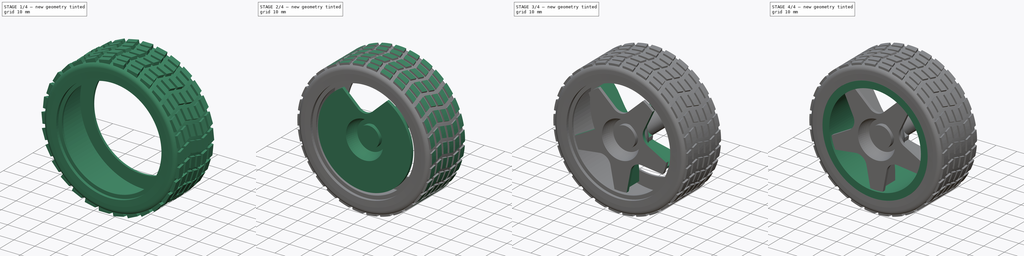
[diagram: build sequence overview — one tinted view per stage of 4, left to right]
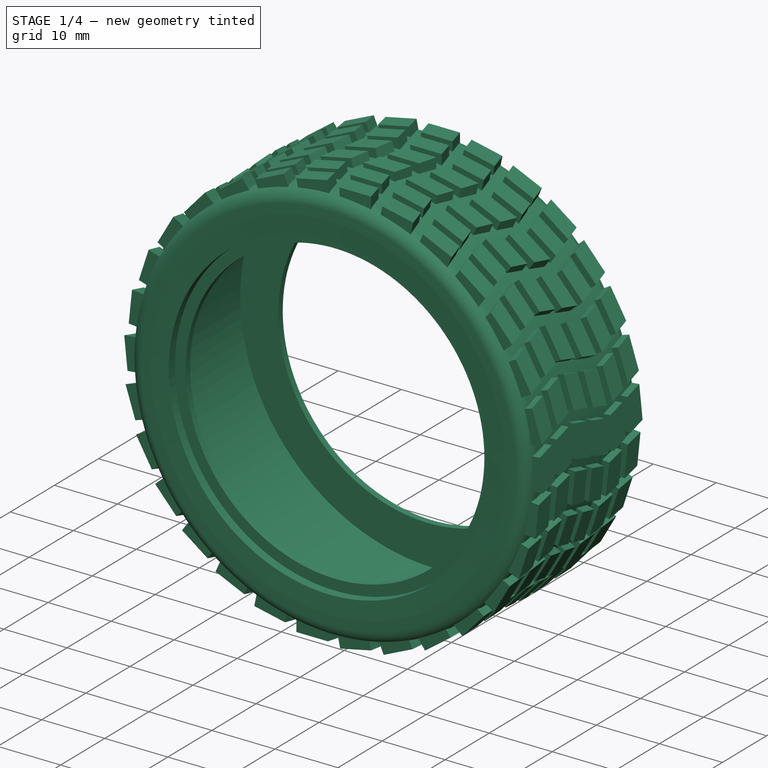
[diagram: stage 1 of 4 — iso view after this stage's code; geometry added in this stage tinted green]
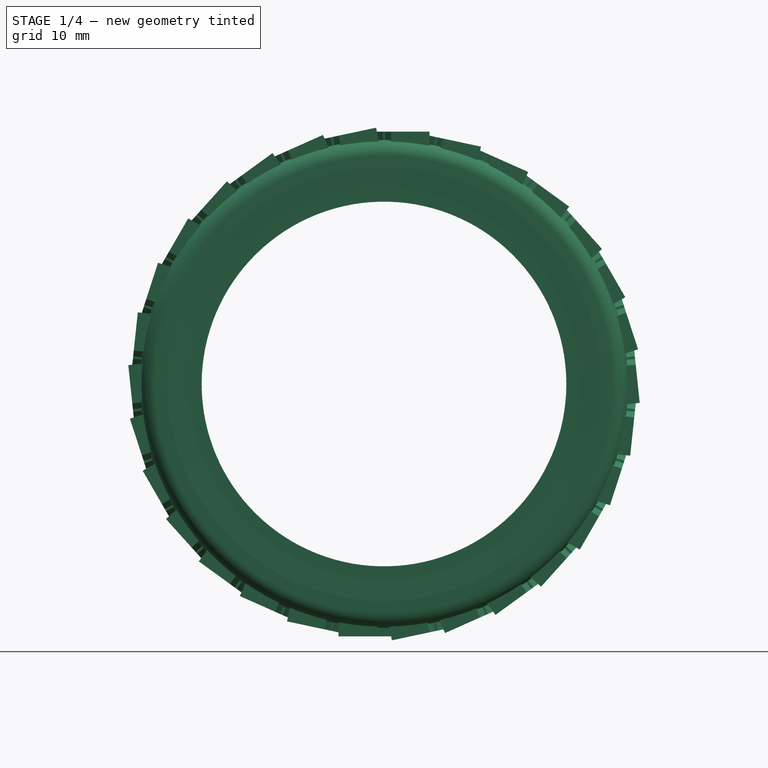
[diagram: stage 1 of 4 — front view after this stage's code; geometry added in this stage tinted green]
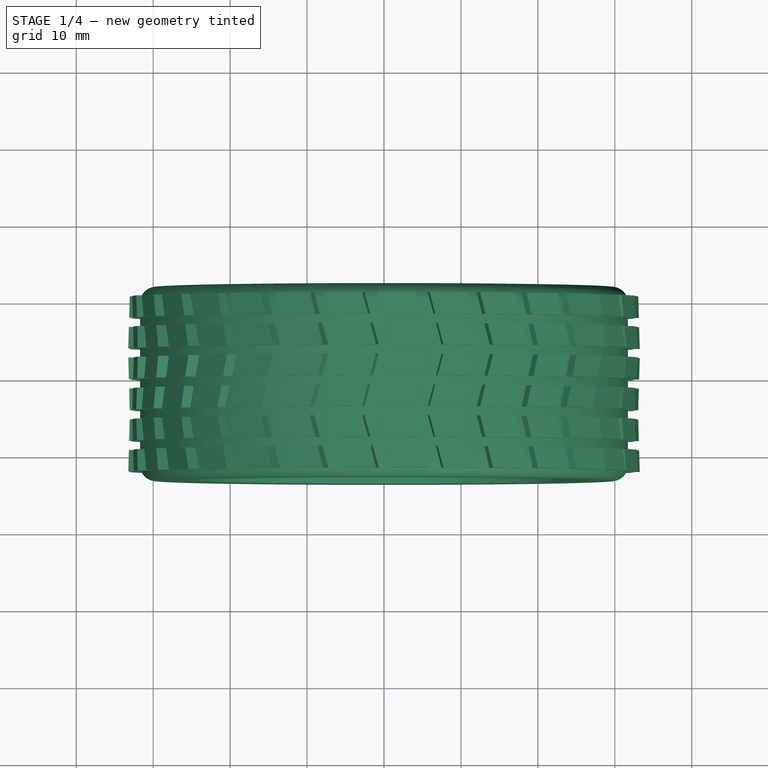
[diagram: stage 1 of 4 — top view after this stage's code; geometry added in this stage tinted green]
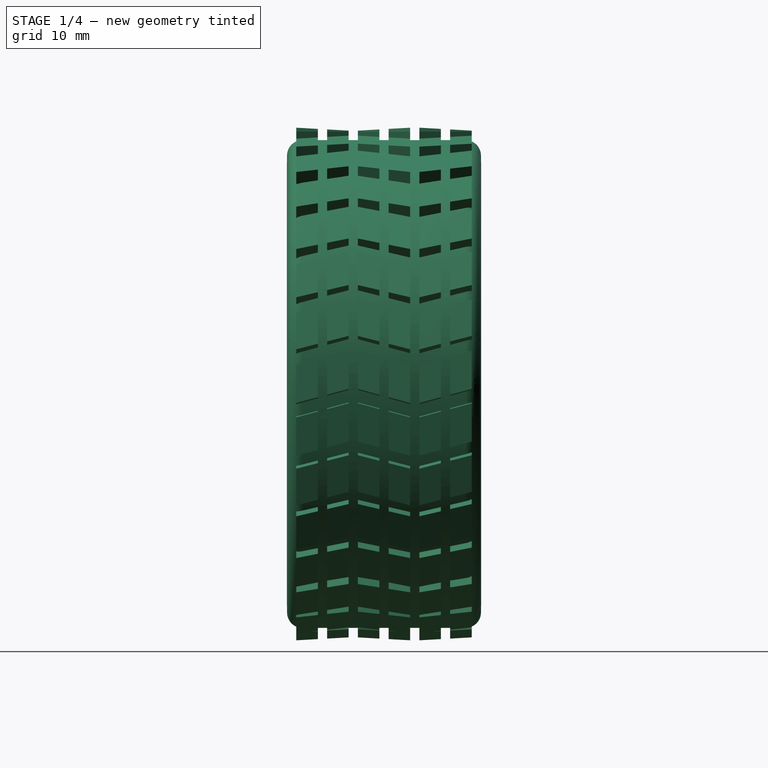
[diagram: stage 1 of 4 — right view after this stage's code; geometry added in this stage tinted green]
FCSTD DOCUMENT  (FreeCAD 0.21R29865 (Git))
Label: Yellow_wheel_65mm
License: Creative Commons Attribution-NonCommercial-ShareAlike
LicenseURL: http://creativecommons.org/licenses/by-nc-sa/4.0/
objects: Sketcher::SketchObject×10, PartDesign::Revolution×3, PartDesign::Pocket×3, PartDesign::Pad×3, PartDesign::PolarPattern×3, PartDesign::Body×2, PartDesign::Plane×1, PartDesign::Fillet×1, PartDesign::Groove×1, App::Part×1
note: 38 computed .brp shape members not serialized (recipe doc carries the construction recipe); baked Part::Feature solids carry a one-line shape summary decoded from their .brp

FEATURE [PartDesign::Body] Body  label="Wheel"
  Group = -> [Sketch,Revolution,Sketch001,Pocket,Sketch002,Pocket001,DatumPlane,Sketch003,Pad,PolarPattern,Sketch004,Revolution001,Sketch005,Pocket002,Sketch006,Pad001,PolarPattern001]
  Origin = -> Origin001
  Tip = -> PolarPattern001
FEATURE [Sketcher::SketchObject] Sketch007
  FullyConstrained = true
  MapMode = 5
  Support = -> [XY_Plane002]
  sketch-geometry (32):
    g0: LineSegment StartX=26.4 StartY=8.9 StartZ=0 EndX=23.7 EndY=8.9 EndZ=0
    g1: LineSegment StartX=23.7 StartY=8.9 StartZ=0 EndX=23.7 EndY=9.9 EndZ=0
    g2: LineSegment StartX=23.7 StartY=9.9 StartZ=0 EndX=25.4 EndY=9.9 EndZ=0
    g3: LineSegment StartX=25.4 StartY=9.9 StartZ=0 EndX=25.4 EndY=11.5 EndZ=0
    g4: Circle CenterX=25.4 CenterY=11.5 CenterZ=0 NormalX=0 NormalY=0 NormalZ=1 AngleXU=0 Radius=1
    g5: Circle CenterX=28.15 CenterY=11.75 CenterZ=0 NormalX=0 NormalY=0 NormalZ=1 AngleXU=0 Radius=1
    g6: Circle CenterX=31.7 CenterY=11.5 CenterZ=0 NormalX=0 NormalY=0 NormalZ=1 AngleXU=0 Radius=1
    g7: BSplineCurve PolesCount=3 KnotsCount=2 Degree=2 IsPeriodic=0
    g8: GeomPoint X=25.4 Y=11.5 Z=0
    g9: GeomPoint X=31.7 Y=11.5 Z=0
    g10: LineSegment StartX=31.7 StartY=11.5 StartZ=0 EndX=31.7 EndY=-13.5 EndZ=0
    g11: LineSegment StartX=26.4 StartY=8.9 StartZ=0 EndX=26.4 EndY=10.3 EndZ=0
    g12: LineSegment StartX=30.7 StartY=10.3 StartZ=0 EndX=26.4 EndY=10.3 EndZ=0
    g13: LineSegment StartX=25.4 StartY=9.9 StartZ=0 EndX=26.4 EndY=9.9 EndZ=0
    g14: LineSegment StartX=30.7 StartY=10.3 StartZ=0 EndX=30.7 EndY=-12.5 EndZ=0
    g15: LineSegment StartX=30.7 StartY=-12.5 StartZ=0 EndX=26.4 EndY=-12.5 EndZ=0
    g16: LineSegment StartX=26.4 StartY=-12.5 StartZ=0 EndX=26.4 EndY=-11.1 EndZ=0
    g17: LineSegment StartX=26.4 StartY=-11.1 StartZ=0 EndX=23.7 EndY=-11.1 EndZ=0
    g18: LineSegment StartX=23.7 StartY=-11.1 StartZ=0 EndX=23.7 EndY=-12.1 EndZ=0
    g19: LineSegment StartX=23.7 StartY=-12.1 StartZ=0 EndX=25.4 EndY=-12.1 EndZ=0
    g20: LineSegment StartX=25.4 StartY=-12.1 StartZ=0 EndX=25.4 EndY=-13.5 EndZ=0
    g21: Circle CenterX=25.4 CenterY=-13.5 CenterZ=0 NormalX=0 NormalY=0 NormalZ=1 AngleXU=0 Radius=1
    g22: Circle CenterX=28.15 CenterY=-13.75 CenterZ=0 NormalX=0 NormalY=0 NormalZ=1 AngleXU=0 Radius=1
    g23: Circle CenterX=31.7 CenterY=-13.5 CenterZ=0 NormalX=0 NormalY=0 NormalZ=1 AngleXU=0 Radius=1
    g24: BSplineCurve PolesCount=3 KnotsCount=2 Degree=2 IsPeriodic=0
    g25: GeomPoint X=25.4 Y=-13.5 Z=0
    g26: GeomPoint X=31.7 Y=-13.5 Z=0
    g27: GeomPoint X=30.7 Y=11.5 Z=0
    g28: LineSegment StartX=25.4 StartY=-12.1 StartZ=0 EndX=26.4 EndY=-12.1 EndZ=0
    g29: LineSegment StartX=26.4 StartY=-12.5 StartZ=0 EndX=26.4 EndY=-13.5 EndZ=0
    g30: LineSegment StartX=30.7 StartY=11.5 StartZ=0 EndX=30.7 EndY=10.3 EndZ=0
    g31: LineSegment StartX=30.7 StartY=10.3 StartZ=0 EndX=31.7 EndY=10.3 EndZ=0
  constraints (85):
    c: Coincident(g0,g1)
    c: Vertical(g1)
    c: Coincident(g1,g2)
    c: Coincident(g2,g3)
    c: Vertical(g3)
    c: Horizontal(g2)
    c: Horizontal(g0)
    c: Weight(g4) = 1
    c: Coincident(g7,g3)
    c: Equal(g4,g5)
    c: Equal(g4,g6)
    c: InternalAlignment(g4,g7)
    c: InternalAlignment(g5,g7)
    c: InternalAlignment(g6,g7)
    c: InternalAlignment(g8,g7)
    c: InternalAlignment(g9,g7)
    c: Coincident(g10,g7)
    c: Vertical(g10)
    c: DistanceX(g0) = 23.7
    c: DistanceY(g3) = 11.5
    c: DistanceY(g10,g10) = 25
    c: Coincident(g11,g0)
    c: Vertical(g11)
    c: Horizontal(g7,g3)
    c: Coincident(g12,g11)
    c: Horizontal(g12)
    c: Coincident(g13,g2)
    c: PointOnObject(g13,g11)
    c: Horizontal(g13)
    c: Equal(g13,g1)
    c: DistanceY(g1,g1) = 1
    c: Coincident(g12,g14)
    c: Vertical(g14)
    c: Coincident(g14,g15)
    c: Horizontal(g15)
    c: Coincident(g15,g16)
    c: Vertical(g16)
    c: Coincident(g16,g17)
    c: Horizontal(g17)
    c: Coincident(g17,g18)
    c: Coincident(g18,g19)
    c: Coincident(g19,g20)
    c: Vertical(g20)
    c: Weight(g21) = 1
    c: Coincident(g24,g20)
    c: Equal(g21,g22)
    c: Equal(g21,g23)
    c: Coincident(g24,g10)
    c: InternalAlignment(g21,g24)
    c: InternalAlignment(g22,g24)
    c: InternalAlignment(g23,g24)
    c: InternalAlignment(g25,g24)
    c: InternalAlignment(g26,g24)
    c: Vertical(g17,g0)
    c: Vertical(g18)
    c: Horizontal(g19)
    c: Equal(g0,g17)
    c: Equal(g19,g2)
    c: Equal(g11,g16)
    c: DistanceX(g7) = 31.7
    c: Horizontal(g7,g27)
    c: Coincident(g28,g19)
    c: PointOnObject(g28,g16)
    c: Horizontal(g28)
    c: Coincident(g29,g15)
    c: Vertical(g29)
    c: Horizontal(g29,g20)
    c: Equal(g29,g28)
    c: Equal(g28,g18)
    c: Horizontal(g10,g20)
    c: Coincident(g30,g27)
    c: Coincident(g30,g12)
    c: Vertical(g30)
    c: DistanceY(g20,g18) = 1.4
    c: DistanceY(g1,g3) = 1.6
    c: DistanceX(g3) = 25.4
    c: Coincident(g31,g12)
    c: PointOnObject(g31,g10)
    c: Horizontal(g31)
    c: Equal(g31,g13)
    c: Vertical(g5,g22)
    c: DistanceY(g22,g10) = 0.25
    c: DistanceY(g7,g5) = 0.25
    c: DistanceX(g5,g7) = 3.55
    c: DistanceX(g14) = 30.7
FEATURE [PartDesign::Revolution] Revolution002
  Angle = 360
  Axis = (0,1,0)
  Base = (0,0,0)
  Profile = -> Sketch007
  ReferenceAxis = -> Sketch007 [V_Axis]
  Reversed = true
FEATURE [PartDesign::Fillet] Fillet
  Base = -> Revolution002 [Edge10,Edge8]
  BaseFeature = -> Revolution002
  Radius = 2
  SupportTransform = false
  UseAllEdges = false
FEATURE [Sketcher::SketchObject] Sketch008
  AttachmentOffset = pos=(0,0,30.8) rot=(0,0,1;0rad)
  FullyConstrained = false
  MapMode = 5
  Placement = pos=(0,0,30.8) rot=(0,0,1;0rad)
  Support = -> [XY_Plane002]
  sketch-geometry (37):
    g0: LineSegment StartX=-0.916783 StartY=12.5778 StartZ=0 EndX=-0.916783 EndY=-16.3112 EndZ=0
    g1: LineSegment StartX=-0.161785 StartY=-16.3112 StartZ=0 EndX=-0.161785 EndY=12.5778 EndZ=0
    g2: LineSegment StartX=0.161785 StartY=12.5778 StartZ=0 EndX=0.161785 EndY=-16.3112 EndZ=0
    g3: LineSegment StartX=0.916783 StartY=12.5778 StartZ=0 EndX=0.916783 EndY=-16.3112 EndZ=0
    g4: LineSegment StartX=4.08322 StartY=12.5778 StartZ=0 EndX=4.08322 EndY=-16.3112 EndZ=0
    g5: LineSegment StartX=4.83821 StartY=12.5778 StartZ=0 EndX=4.83821 EndY=-16.3112 EndZ=0
    g6: LineSegment StartX=5.16179 StartY=12.5778 StartZ=0 EndX=5.16179 EndY=-16.3112 EndZ=0
    g7: LineSegment StartX=5.91678 StartY=12.5778 StartZ=0 EndX=5.91678 EndY=-16.3112 EndZ=0
    g8: LineSegment StartX=-0.916783 StartY=10.4 StartZ=0 EndX=-0.161785 EndY=7.6 EndZ=0
    g9: LineSegment StartX=-0.161785 StartY=7.6 StartZ=0 EndX=4.83821 EndY=7.6 EndZ=0
    g10: LineSegment StartX=4.83821 StartY=7.6 StartZ=0 EndX=4.08322 EndY=10.4 EndZ=0
    g11: LineSegment StartX=4.08322 StartY=10.4 StartZ=0 EndX=-0.916783 EndY=10.4 EndZ=0
    g12: LineSegment StartX=0.161785 StartY=6.4 StartZ=0 EndX=0.916783 EndY=3.6 EndZ=0
    g13: LineSegment StartX=0.916783 StartY=3.6 StartZ=0 EndX=5.91678 EndY=3.6 EndZ=0
    g14: LineSegment StartX=5.91678 StartY=3.6 StartZ=0 EndX=5.16179 EndY=6.4 EndZ=0
    g15: LineSegment StartX=5.16179 StartY=6.4 StartZ=0 EndX=0.161785 EndY=6.4 EndZ=0
    g16: LineSegment StartX=5.91678 StartY=2.4 StartZ=0 EndX=0.916783 EndY=2.4 EndZ=0
    g17: LineSegment StartX=0.916783 StartY=2.4 StartZ=0 EndX=0.161785 EndY=-0.4 EndZ=0
    g18: LineSegment StartX=0.161785 StartY=-0.4 StartZ=0 EndX=5.16179 EndY=-0.4 EndZ=0
    g19: LineSegment StartX=5.16179 StartY=-0.4 StartZ=0 EndX=5.91678 EndY=2.4 EndZ=0
    g20: LineSegment StartX=-0.161785 StartY=-1.6 StartZ=0 EndX=-0.916783 EndY=-4.4 EndZ=0
    g21: LineSegment StartX=-0.916783 StartY=-4.4 StartZ=0 EndX=4.08322 EndY=-4.4 EndZ=0
    g22: LineSegment StartX=4.08322 StartY=-4.4 StartZ=0 EndX=4.83821 EndY=-1.6 EndZ=0
    g23: LineSegment StartX=4.83821 StartY=-1.6 StartZ=0 EndX=-0.161785 EndY=-1.6 EndZ=0
    g24: LineSegment StartX=-0.916783 StartY=-5.6 StartZ=0 EndX=4.08322 EndY=-5.6 EndZ=0
    g25: LineSegment StartX=4.08322 StartY=-5.6 StartZ=0 EndX=4.83821 EndY=-8.4 EndZ=0
    g26: LineSegment StartX=4.83821 StartY=-8.4 StartZ=0 EndX=-0.161785 EndY=-8.4 EndZ=0
    g27: LineSegment StartX=-0.161785 StartY=-8.4 StartZ=0 EndX=-0.916783 EndY=-5.6 EndZ=0
    g28: LineSegment StartX=0.161785 StartY=-9.6 StartZ=0 EndX=0.916783 EndY=-12.4 EndZ=0
    g29: LineSegment StartX=0.916783 StartY=-12.4 StartZ=0 EndX=5.91678 EndY=-12.4 EndZ=0
    g30: LineSegment StartX=5.91678 StartY=-12.4 StartZ=0 EndX=5.16179 EndY=-9.6 EndZ=0
    g31: LineSegment StartX=5.16179 StartY=-9.6 StartZ=0 EndX=0.161785 EndY=-9.6 EndZ=0
    g32: LineSegment StartX=4.08322 StartY=10.4 StartZ=0 EndX=5.91678 EndY=3.6 EndZ=0
    g33: LineSegment StartX=5.91678 StartY=2.4 StartZ=0 EndX=4.08322 EndY=-4.4 EndZ=0
    g34: LineSegment StartX=4.08322 StartY=-5.6 StartZ=0 EndX=5.91678 EndY=-12.4 EndZ=0
    g35: LineSegment StartX=-4.17763 StartY=-1 StartZ=0 EndX=15.3907 EndY=-1 EndZ=0
    g36: GeomPoint X=0 Y=-1 Z=0
  constraints (111):
    c: Vertical(g0)
    c: Vertical(g1)
    c: Vertical(g2)
    c: Vertical(g3)
    c: Vertical(g4)
    c: Vertical(g5)
    c: Vertical(g6)
    c: Vertical(g7)
    c: PointOnObject(g8,g0)
    c: PointOnObject(g8,g1)
    c: Coincident(g8,g9)
    c: PointOnObject(g9,g5)
    c: Horizontal(g9)
    c: Coincident(g9,g10)
    c: PointOnObject(g10,g4)
    c: Coincident(g10,g11)
    c: Coincident(g11,g8)
    c: Horizontal(g11)
    c: PointOnObject(g12,g2)
    c: PointOnObject(g12,g3)
    c: Coincident(g12,g13)
    c: Horizontal(g13)
    c: Coincident(g13,g14)
    c: PointOnObject(g14,g6)
    c: Coincident(g14,g15)
    c: Coincident(g15,g12)
    c: Horizontal(g15)
    c: Parallel(g14,g10)
    c: PointOnObject(g13,g7)
    c: PointOnObject(g16,g7)
    c: PointOnObject(g16,g3)
    c: Horizontal(g16)
    c: Coincident(g16,g17)
    c: PointOnObject(g17,g2)
    c: Coincident(g17,g18)
    c: PointOnObject(g18,g6)
    c: Horizontal(g18)
    c: Coincident(g18,g19)
    c: Coincident(g19,g16)
    c: PointOnObject(g20,g1)
    c: PointOnObject(g20,g0)
    c: Coincident(g20,g21)
    c: PointOnObject(g21,g4)
    c: Horizontal(g21)
    c: Coincident(g21,g22)
    c: PointOnObject(g22,g5)
    c: Coincident(g22,g23)
    c: Coincident(g23,g20)
    c: Horizontal(g23)
    c: PointOnObject(g24,g0)
    c: PointOnObject(g24,g4)
    c: Horizontal(g24)
    c: Coincident(g24,g25)
    c: PointOnObject(g25,g5)
    c: Coincident(g25,g26)
    c: PointOnObject(g26,g1)
    c: Horizontal(g26)
    c: Coincident(g26,g27)
    c: Coincident(g27,g24)
    c: PointOnObject(g28,g2)
    c: PointOnObject(g28,g3)
    c: Coincident(g28,g29)
    c: PointOnObject(g29,g7)
    c: Horizontal(g29)
    c: Coincident(g29,g30)
    c: PointOnObject(g30,g6)
    c: Coincident(g30,g31)
    c: Coincident(g31,g28)
    c: Horizontal(g31)
    c: Parallel(g8,g12)
    c: Parallel(g12,g10)
    c: Parallel(g22,g19)
    c: Parallel(g30,g25)
    c: Coincident(g32,g10)
    c: Coincident(g32,g13)
    c: Coincident(g33,g16)
    c: Coincident(g33,g21)
    c: Coincident(g34,g24)
    c: Coincident(g34,g29)
    c: Parallel(g30,g34)
    c: Parallel(g19,g33)
    c: DistanceY(g14,g9) = 1.2
    c: DistanceY(g16,g13) = 1.2
    c: DistanceY(g22,g18) = 1.2
    c: DistanceY(g24,g21) = 1.2
    c: DistanceY(g30,g25) = 1.2
    c: DistanceX(g11,g11) = 5
    c: Equal(g15,g11)
    c: DistanceY(g8,g8) = 2.8
    c: DistanceY(g12,g12) = 2.8
    c: DistanceY(g17,g16) = 2.8
    c: Distance(g29,g28) = 6.4
    c: Horizontal(g0,g1)
    c: Horizontal(g1,g2)
    c: Horizontal(g2,g3)
    c: Horizontal(g3,g4)
    c: Horizontal(g4,g6)
    c: Horizontal(g6,g7)
    c: Horizontal(g7,g5)
    c: Horizontal(g0,g1)
    c: Horizontal(g1,g2)
    c: Horizontal(g2,g3)
    c: Horizontal(g3,g4)
    c: Horizontal(g4,g5)
    c: Horizontal(g5,g6)
    c: Horizontal(g6,g7)
    c: Horizontal(g35)
    c: DistanceY(g35) = -1
    c: PointOnObject(g36,g35)
    c: PointOnObject(g36,g-2)
    c: Symmetric(g17,g20,g36)
FEATURE [PartDesign::Pad] Pad002
  BaseFeature = -> Fillet
  Direction = (0,0,1)
  Length = 2
  Length2 = 10
  Profile = -> Sketch008
  ReferenceAxis = -> Sketch008 [N_Axis]
  Type = 0
FEATURE [PartDesign::PolarPattern] PolarPattern002
  Angle = 360
  Axis = -> Y_Axis002
  BaseFeature = -> Pad002
  Occurrences = 30
  Originals = -> [Pad002]
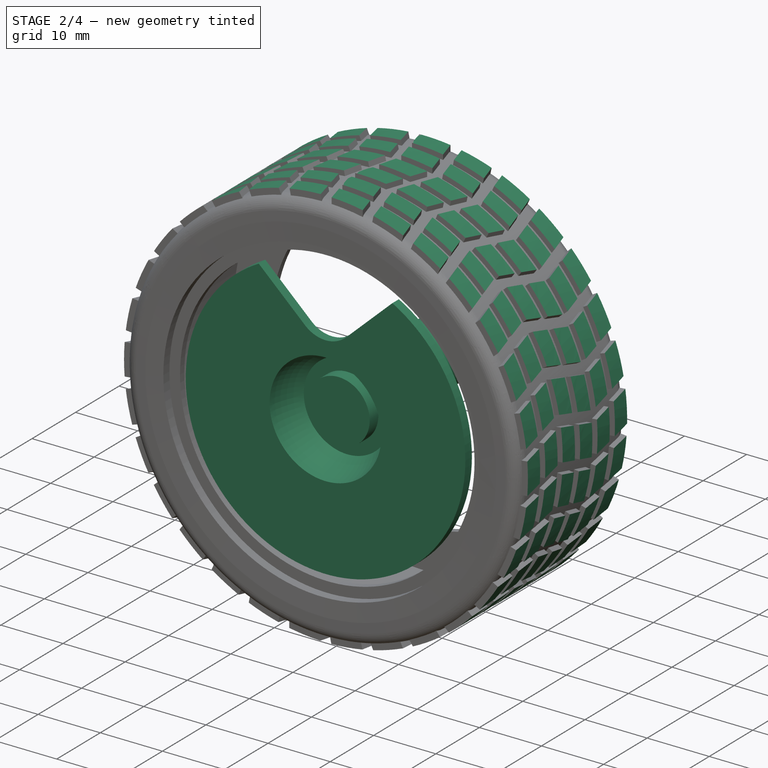
[diagram: stage 2 of 4 — iso view after this stage's code; geometry added in this stage tinted green]
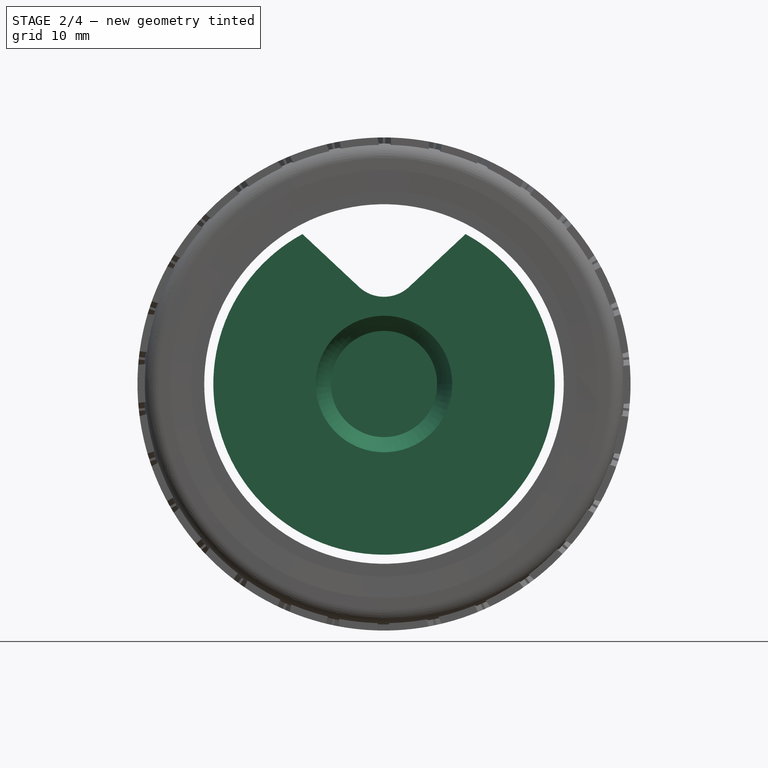
[diagram: stage 2 of 4 — front view after this stage's code; geometry added in this stage tinted green]
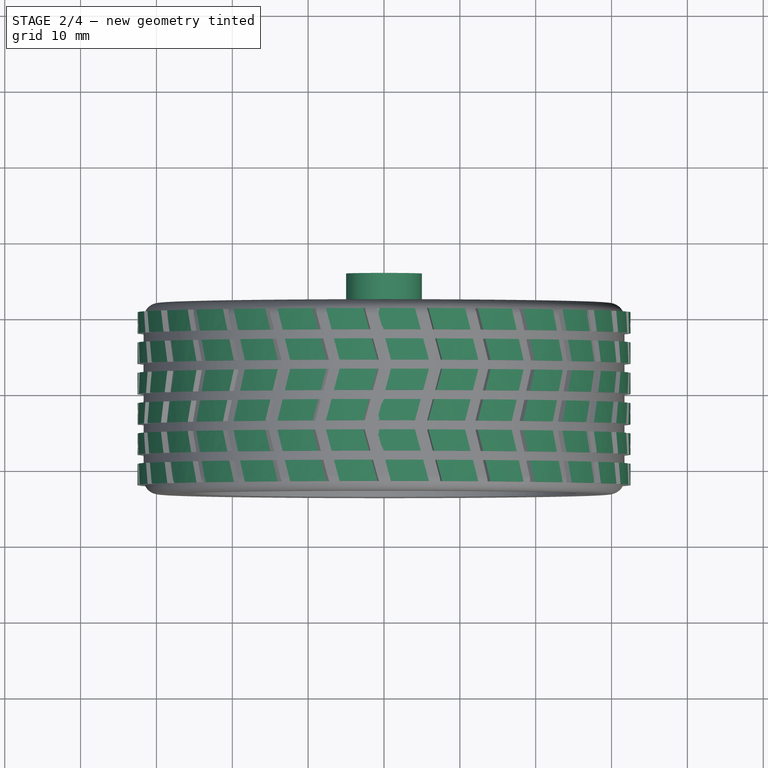
[diagram: stage 2 of 4 — top view after this stage's code; geometry added in this stage tinted green]
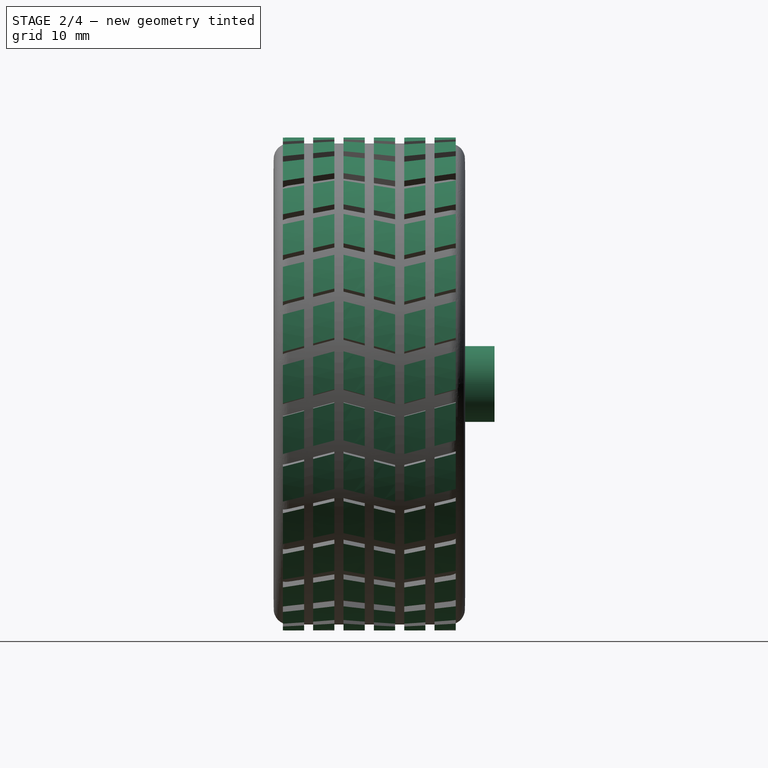
[diagram: stage 2 of 4 — right view after this stage's code; geometry added in this stage tinted green]
FEATURE [Sketcher::SketchObject] Sketch
  FullyConstrained = true
  MapMode = 5
  Support = -> [XY_Plane001]
  sketch-geometry (13):
    g0: LineSegment StartX=9 StartY=-12.5 StartZ=0 EndX=22.5 EndY=-12.5 EndZ=0
    g1: LineSegment StartX=22.5 StartY=-12.5 StartZ=0 EndX=22.5 EndY=-11 EndZ=0
    g2: LineSegment StartX=22.5 StartY=-11 StartZ=0 EndX=10.25 EndY=-11 EndZ=0
    g3: ArcOfCircle CenterX=0.251592 CenterY=-10.8216 CenterZ=0 NormalX=0 NormalY=0 NormalZ=1 AngleXU=0 Radius=10 StartAngle=6.26534 EndAngle=6.96752
    g4: LineSegment StartX=8 StartY=-4.5 StartZ=0 EndX=8 EndY=-1.5 EndZ=0
    g5: LineSegment StartX=8 StartY=-1.5 StartZ=0 EndX=5 EndY=-1.5 EndZ=0
    g6: LineSegment StartX=5 StartY=-1.5 StartZ=0 EndX=5 EndY=15.5 EndZ=0
    g7: LineSegment StartX=5 StartY=15.5 StartZ=0 EndX=0 EndY=15.5 EndZ=0
    g8: LineSegment StartX=0 StartY=15.5 StartZ=0 EndX=0 EndY=-9.5 EndZ=0
    g9: LineSegment StartX=0 StartY=-9.5 StartZ=0 EndX=5 EndY=-9.5 EndZ=0
    g10: LineSegment StartX=5 StartY=-9.5 StartZ=0 EndX=5 EndY=-7.5 EndZ=0
    g11: LineSegment StartX=5 StartY=-7.5 StartZ=0 EndX=7 EndY=-7.5 EndZ=0
    g12: ArcOfCircle CenterX=-0.941862 CenterY=-13.5767 CenterZ=0 NormalX=0 NormalY=0 NormalZ=1 AngleXU=0 Radius=10 StartAngle=0.107884 EndAngle=0.653129
  constraints (41):
    c: Horizontal(g0)
    c: DistanceX(g0) = 22.5
    c: Coincident(g1,g0)
    c: Vertical(g1)
    c: DistanceY(g1,g1) = 1.5
    c: Coincident(g2,g1)
    c: Horizontal(g2)
    c: Coincident(g3,g2)
    c: DistanceX(g2) = 10.25
    c: DistanceX(g3) = 8
    c: Coincident(g4,g3)
    c: Vertical(g4)
    c: DistanceY(g4,g4) = 3
    c: Coincident(g5,g4)
    c: Horizontal(g5)
    c: Coincident(g5,g6)
    c: Vertical(g6)
    c: Coincident(g6,g7)
    c: PointOnObject(g7,g-2)
    c: Horizontal(g7)
    c: Coincident(g7,g8)
    c: PointOnObject(g8,g-2)
    c: DistanceX(g5) = 5
    c: DistanceY(g6,g6) = 17
    c: Coincident(g8,g9)
    c: Horizontal(g9)
    c: Coincident(g9,g10)
    c: Coincident(g10,g11)
    c: Horizontal(g11)
    c: Vertical(g10)
    c: DistanceX(g9) = 5
    c: DistanceX(g11) = 7
    c: DistanceX(g0) = 9
    c: Coincident(g12,g0)
    c: Coincident(g12,g11)
    c: Equal(g3,g12)
    c: DistanceY(g0,g7) = 28
    c: DistanceY(g0,g9) = 3
    c: DistanceY(g10,g10) = 2
    c: DistanceY(g0) = -12.5
    c: Radius(g3) = 10
FEATURE [PartDesign::Revolution] Revolution
  Angle = 360
  Axis = (0,1,0)
  Base = (0,0,0)
  Profile = -> Sketch
  ReferenceAxis = -> Sketch [V_Axis]
  Reversed = true
FEATURE [Sketcher::SketchObject] Sketch001
  ExternalGeometry = -> [Revolution]
  FullyConstrained = true
  MapMode = 5
  Placement = pos=(0,0,0) rot=(1,0,0;1.5708rad)
  Support = -> [XZ_Plane001]
  sketch-geometry (5):
    g0: LineSegment StartX=-3.31153 StartY=12.8075 StartZ=0 EndX=-10.75 EndY=19.7658 EndZ=0
    g1: LineSegment StartX=3.31153 StartY=12.8075 StartZ=0 EndX=10.75 EndY=19.7658 EndZ=0
    g2: ArcOfCircle CenterX=0 CenterY=-2.8e-15 CenterZ=0 NormalX=0 NormalY=0 NormalZ=1 AngleXU=0 Radius=22.5 StartAngle=1.07267 EndAngle=2.06892
    g3: ArcOfCircle CenterX=-1e-16 CenterY=16.3475 CenterZ=0 NormalX=0 NormalY=0 NormalZ=1 AngleXU=0 Radius=4.84746 StartAngle=3.96033 EndAngle=5.46445
    g4: GeomPoint X=0 Y=11.5 Z=0
  constraints (13):
    c: Coincident(g2,g-3)
    c: Coincident(g2,g1)
    c: Coincident(g2,g0)
    c: Symmetric(g1,g0,g-2)
    c: Symmetric(g1,g0,g-2)
    c: Equal(g2,g-3)
    c: Coincident(g3,g1)
    c: Tangent(g3,g0) = 1.5708
    c: PointOnObject(g4,g-2)
    c: PointOnObject(g4,g3)
    c: DistanceX(g0,g1) = 21.5
    c: Angle(g1) = 0.752062
    c: DistanceY(g4) = 11.5
FEATURE [PartDesign::Pocket] Pocket
  BaseFeature = -> Revolution
  Direction = (0,1,-2e-16)
  Length = 5
  Length2 = 5
  Profile = -> Sketch001
  ReferenceAxis = -> Sketch001 [N_Axis]
  Reversed = true
  Type = 1
FEATURE [Sketcher::SketchObject] Sketch009
  FullyConstrained = false
  MapMode = 5
  Placement = pos=(0,0,0) rot=(0.57735,0.57735,0.57735;2.0944rad)
  Support = -> [YZ_Plane002]
  sketch-geometry (9):
    g0: LineSegment StartX=-14.5 StartY=35.5 StartZ=0 EndX=12.5 EndY=35.5 EndZ=0
    g1: LineSegment StartX=12.5 StartY=35.5 StartZ=0 EndX=12.5 EndY=31.5 EndZ=0
    g2: LineSegment StartX=12.5 StartY=31.5 StartZ=0 EndX=11.5 EndY=31.5 EndZ=0
    g3: LineSegment StartX=11.5 StartY=31.5 StartZ=0 EndX=11.5 EndY=32.5 EndZ=0
    g4: LineSegment StartX=11.5 StartY=32.5 StartZ=0 EndX=-13.5 EndY=32.5 EndZ=0
    g5: LineSegment StartX=-13.5 StartY=32.5 StartZ=0 EndX=-13.5 EndY=31.5 EndZ=0
    g6: LineSegment StartX=-13.5 StartY=31.5 StartZ=0 EndX=-14.5 EndY=31.5 EndZ=0
    g7: LineSegment StartX=-14.5 StartY=31.5 StartZ=0 EndX=-14.5 EndY=35.5 EndZ=0
    g8: LineSegment StartX=-1 StartY=29.7 StartZ=0 EndX=-1 EndY=38.0353 EndZ=0
  constraints (24):
    c: Horizontal(g0)
    c: Coincident(g0,g1)
    c: Vertical(g1)
    c: Coincident(g1,g2)
    c: Horizontal(g2)
    c: Coincident(g2,g3)
    c: Vertical(g3)
    c: Coincident(g3,g4)
    c: Horizontal(g4)
    c: Coincident(g4,g5)
    c: Vertical(g5)
    c: Coincident(g5,g6)
    c: Coincident(g6,g7)
    c: Coincident(g7,g0)
    c: Vertical(g7)
    c: DistanceX(g8) = -1
    c: Symmetric(g4,g3,g8)
    c: Symmetric(g1,g6,g8)
    c: DistanceY(g3) = 32.5
    c: DistanceY(g3,g0) = 3
    c: Horizontal(g6)
    c: DistanceX(g5,g2) = 25
    c: DistanceX(g0,g0) = 27
    c: DistanceY(g3,g3) = 1
FEATURE [PartDesign::Groove] Groove
  Angle = 360
  Axis = (1e-16,1,-1e-16)
  Base = (0,0,0)
  BaseFeature = -> PolarPattern002
  Profile = -> Sketch009
  ReferenceAxis = -> Y_Axis002
  Reversed = true
FEATURE [PartDesign::Body] Body001  label="Tire"
  Group = -> [Sketch007,Revolution002,Fillet,Sketch008,Pad002,PolarPattern002,Sketch009,Groove]
  Origin = -> Origin002
  Tip = -> Groove
FEATURE [App::Part] Part  label="Yellow wheel 65mm"
  Group = -> [Body,Body001]
  Origin = -> Origin
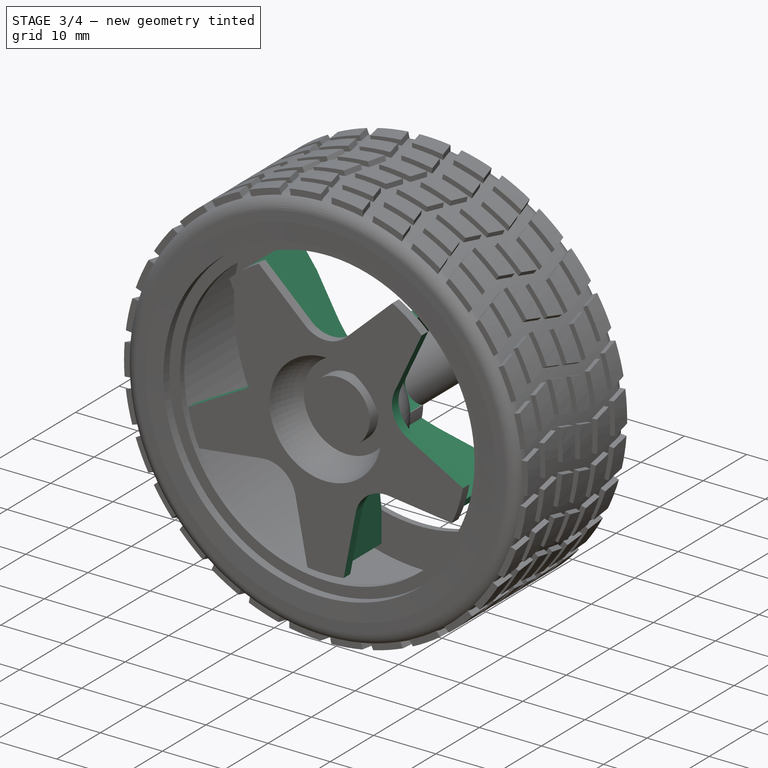
[diagram: stage 3 of 4 — iso view after this stage's code; geometry added in this stage tinted green]
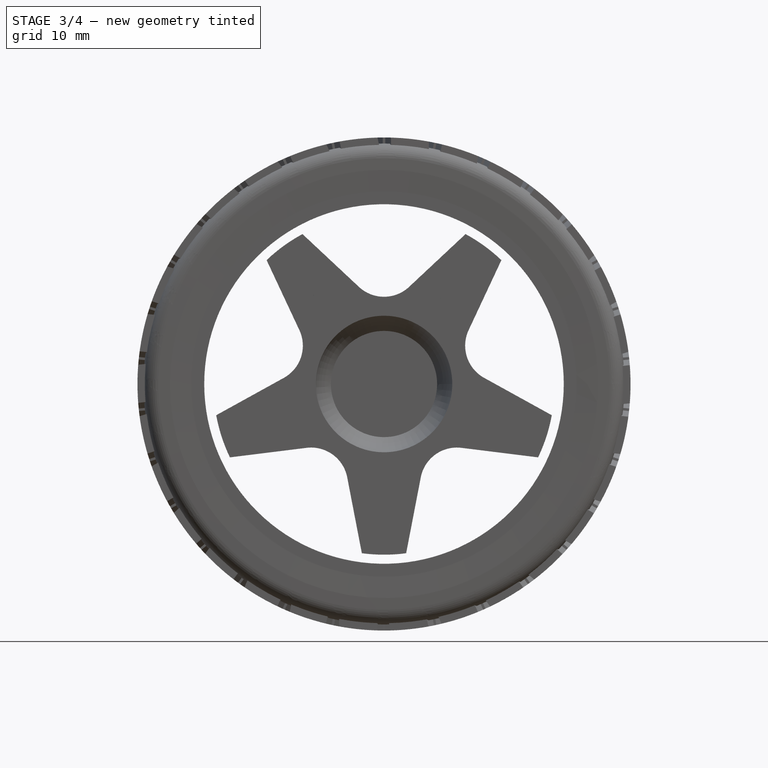
[diagram: stage 3 of 4 — front view after this stage's code; geometry added in this stage tinted green]
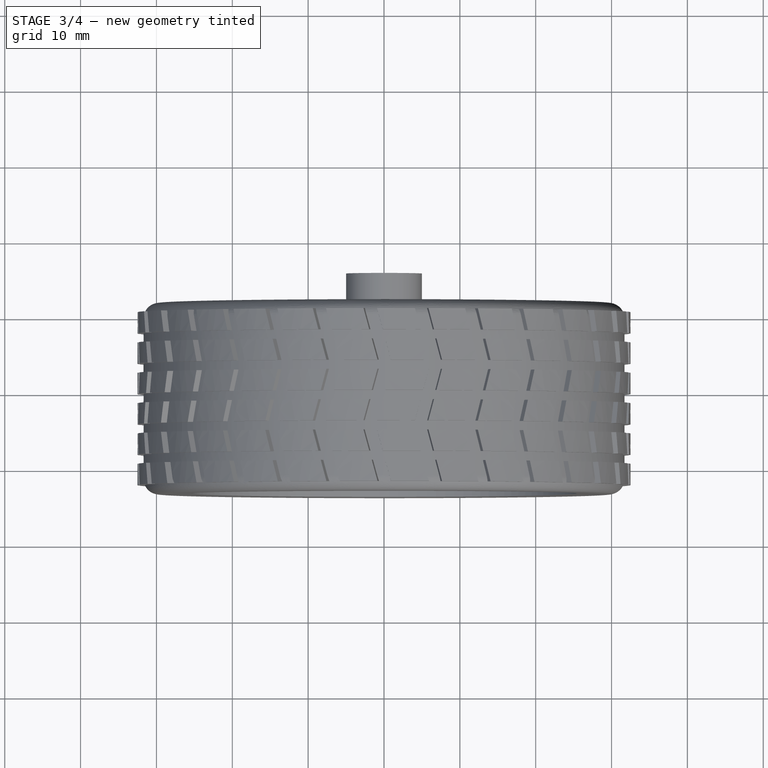
[diagram: stage 3 of 4 — top view after this stage's code; geometry added in this stage tinted green]
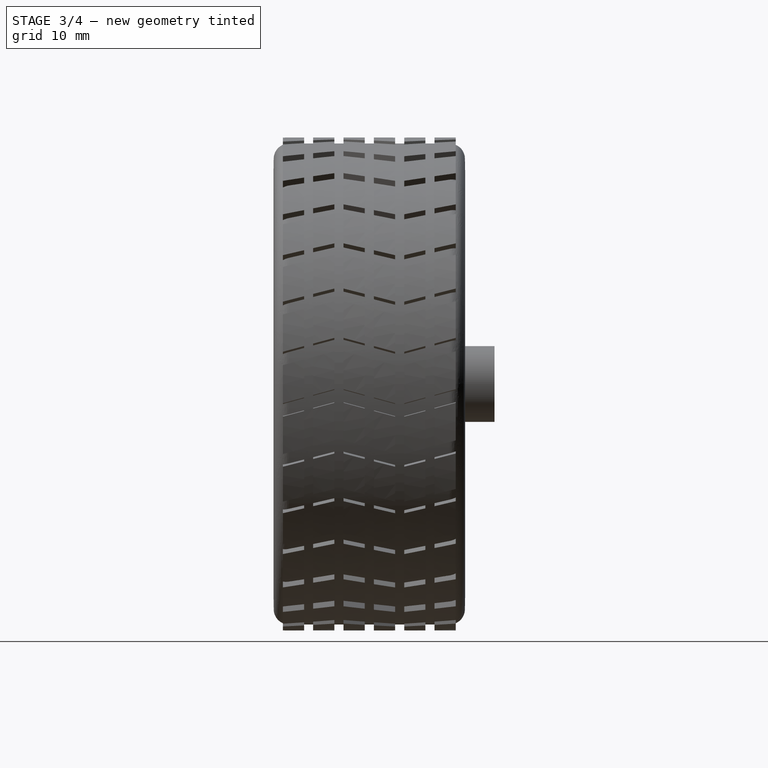
[diagram: stage 3 of 4 — right view after this stage's code; geometry added in this stage tinted green]
FEATURE [Sketcher::SketchObject] Sketch002
  ExternalGeometry = -> [Pocket]
  FullyConstrained = true
  MapMode = 5
  Placement = pos=(0,-1.5,0) rot=(0,0.707107,0.707107;3.14159rad)
  Support = -> [Pocket]
  sketch-geometry (1):
    g0: Circle CenterX=0 CenterY=8 CenterZ=0 NormalX=0 NormalY=0 NormalZ=1 AngleXU=0 Radius=2.5
  constraints (3):
    c: PointOnObject(g0,g-2)
    c: PointOnObject(g0,g-3)
    c: Diameter(g0) = 5
FEATURE [PartDesign::Pocket] Pocket001
  BaseFeature = -> Pocket
  Direction = (0,-1,2e-16)
  Length = 3
  Length2 = 5
  Profile = -> Sketch002
  ReferenceAxis = -> Sketch002 [N_Axis]
  Type = 0
FEATURE [PartDesign::Plane] DatumPlane
  AttachmentOffset = pos=(0,0,0) rot=(1,0,0;0.628319rad)
  Length = 61.8911
  MapMode = 5
  Placement = pos=(0,0,0) rot=(0.665247,0.665247,0.33896;2.48798rad)
  ResizeMode = 0
  Support = -> [YZ_Plane001]
  Width = 82.5907
FEATURE [Sketcher::SketchObject] Sketch003
  ExternalGeometry = -> [Pocket001]
  FullyConstrained = true
  MapMode = 5
  Placement = pos=(0,0,0) rot=(0.665247,0.665247,0.33896;2.48798rad)
  Support = -> [DatumPlane]
  sketch-geometry (9):
    g0: LineSegment StartX=-11 StartY=22.5 StartZ=0 EndX=-0.5 EndY=22.5 EndZ=0
    g1: LineSegment StartX=-0.5 StartY=22.5 StartZ=0 EndX=-0.5 EndY=17.5 EndZ=0
    g2: LineSegment StartX=-0.5 StartY=17.5 StartZ=0 EndX=-1.32456 EndY=11.3158 EndZ=0
    g3: LineSegment StartX=-1.5 StartY=8.67254 StartZ=0 EndX=-1.5 EndY=8 EndZ=0
    g4: LineSegment StartX=-11 StartY=9.5 StartZ=0 EndX=-11 EndY=22.5 EndZ=0
    g5: ArcOfCircle CenterX=18.5 CenterY=8.67254 CenterZ=0 NormalX=0 NormalY=0 NormalZ=1 AngleXU=0 Radius=20 StartAngle=3.00904 EndAngle=3.14159
    g6: GeomPoint X=-1.5 Y=10 Z=0
    g7: LineSegment StartX=-1.5 StartY=8 StartZ=0 EndX=-5.5 EndY=8 EndZ=0
    g8: LineSegment StartX=-5.5 StartY=8 StartZ=0 EndX=-11 EndY=9.5 EndZ=0
  constraints (24):
    c: DistanceY(g-3) = 22.5
    c: Coincident(g-3,g0)
    c: Horizontal(g0)
    c: Coincident(g0,g1)
    c: Vertical(g1)
    c: Coincident(g1,g2)
    c: Coincident(g3,g-4)
    c: Coincident(g4,g0)
    c: Vertical(g4)
    c: Vertical(g3)
    c: DistanceX(g0,g0) = 10.5
    c: DistanceY(g1,g1) = 5
    c: DistanceY(g3,g6) = 2
    c: PointOnObject(g6,g3)
    c: PointOnObject(g6,g2)
    c: Tangent(g3,g5) = -1.5708
    c: Tangent(g2,g5) = -1.5708
    c: Radius(g5) = 20
    c: Coincident(g3,g7)
    c: Horizontal(g7)
    c: Coincident(g7,g8)
    c: Coincident(g8,g4)
    c: DistanceX(g7,g7) = 4
    c: DistanceY(g4,g4) = 13
FEATURE [PartDesign::Pad] Pad
  BaseFeature = -> Pocket001
  Direction = (0.809017,-1e-16,-0.587785)
  Length = 1.2
  Length2 = 10
  Midplane = true
  Profile = -> Sketch003
  ReferenceAxis = -> Sketch003 [N_Axis]
  Type = 0
FEATURE [PartDesign::PolarPattern] PolarPattern
  Angle = 360
  Axis = -> Sketch003 [H_Axis]
  BaseFeature = -> Pad
  Occurrences = 5
  Originals = -> [Pad,Pocket001,Pocket]
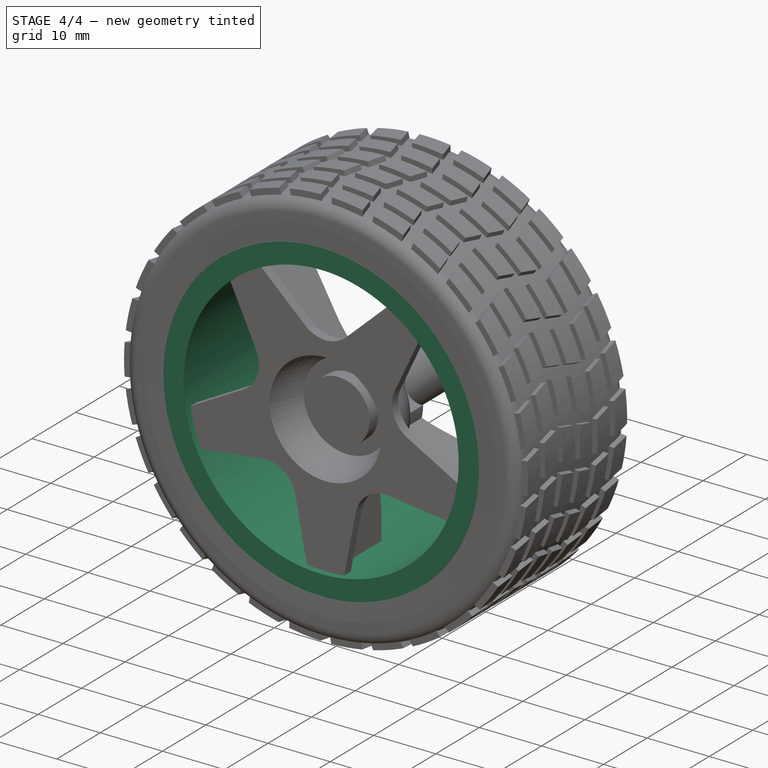
[diagram: stage 4 of 4 — iso view after this stage's code; geometry added in this stage tinted green]
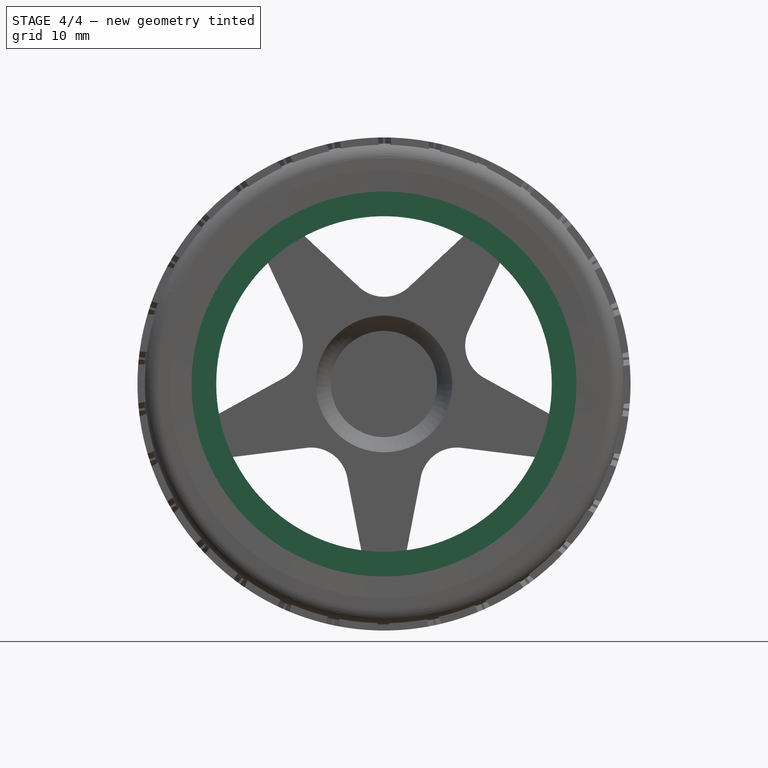
[diagram: stage 4 of 4 — front view after this stage's code; geometry added in this stage tinted green]
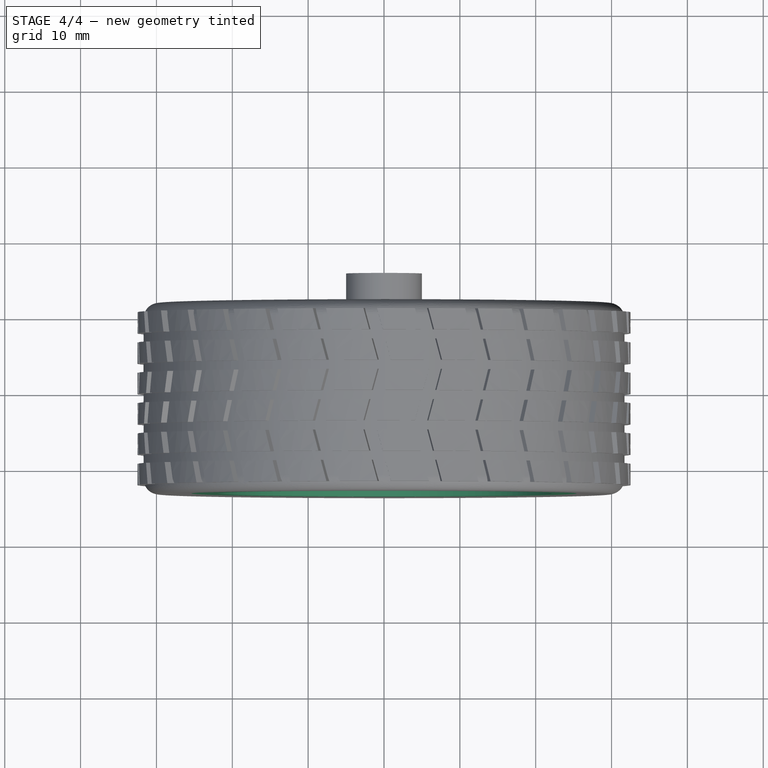
[diagram: stage 4 of 4 — top view after this stage's code; geometry added in this stage tinted green]
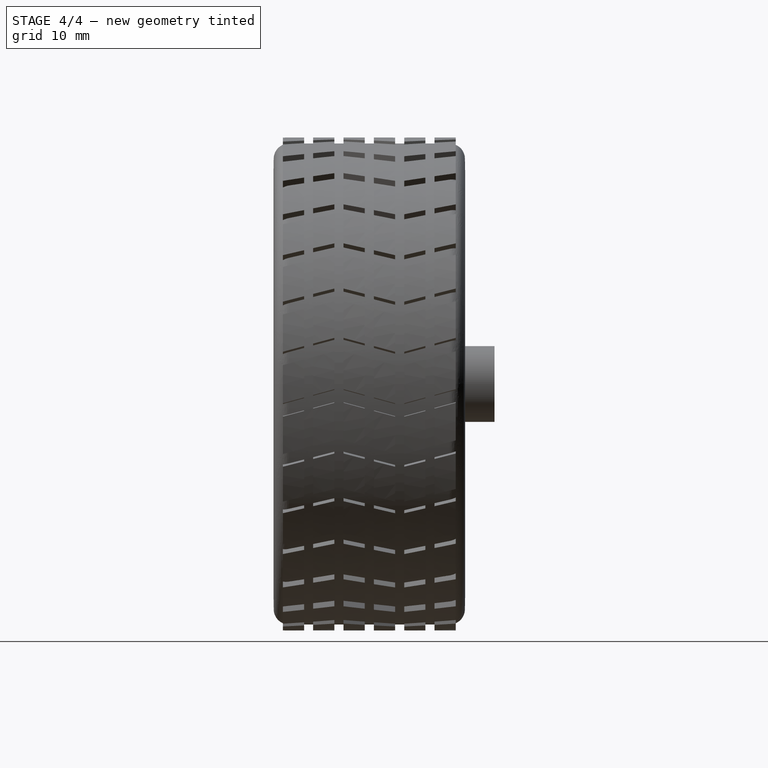
[diagram: stage 4 of 4 — right view after this stage's code; geometry added in this stage tinted green]
FEATURE [Sketcher::SketchObject] Sketch004
  ExternalGeometry = -> [PolarPattern]
  FullyConstrained = true
  MapMode = 5
  Support = -> [XY_Plane001]
  sketch-geometry (20):
    g0: LineSegment StartX=22.1203 StartY=11.5 StartZ=0 EndX=22.1203 EndY=-13.5 EndZ=0
    g1: LineSegment StartX=22.1203 StartY=-13.5 StartZ=0 EndX=25.3703 EndY=-13.5 EndZ=0
    g2: LineSegment StartX=22.1203 StartY=11.5 StartZ=0 EndX=25.3703 EndY=11.5 EndZ=0
    g3: LineSegment StartX=25.3703 StartY=-13.5 StartZ=0 EndX=25.3703 EndY=-12.1 EndZ=0
    g4: LineSegment StartX=25.3703 StartY=-12.1 StartZ=0 EndX=23.6703 EndY=-12.1 EndZ=0
    g5: LineSegment StartX=23.6703 StartY=-12.1 StartZ=0 EndX=23.6703 EndY=-8.3 EndZ=0
    g6: LineSegment StartX=23.6703 StartY=-8.3 StartZ=0 EndX=25.1203 EndY=-8.3 EndZ=0
    g7: LineSegment StartX=25.1203 StartY=-8.3 StartZ=0 EndX=25.1203 EndY=-7.1 EndZ=0
    g8: LineSegment StartX=25.1203 StartY=-7.1 StartZ=0 EndX=23.6703 EndY=-5.65 EndZ=0
    g9: LineSegment StartX=23.6703 StartY=-2.425 StartZ=0 EndX=25.1203 EndY=-0.975 EndZ=0
    g10: LineSegment StartX=25.1203 StartY=-0.975 StartZ=0 EndX=25.1203 EndY=0.225 EndZ=0
    g11: LineSegment StartX=25.1203 StartY=0.225 StartZ=0 EndX=23.6703 EndY=0.225 EndZ=0
    g12: LineSegment StartX=23.6703 StartY=0.225 StartZ=0 EndX=23.6703 EndY=3.45 EndZ=0
    g13: LineSegment StartX=23.6703 StartY=3.45 StartZ=0 EndX=25.1203 EndY=4.9 EndZ=0
    g14: LineSegment StartX=25.1203 StartY=4.9 StartZ=0 EndX=25.1203 EndY=6.1 EndZ=0
    g15: LineSegment StartX=25.1203 StartY=6.1 StartZ=0 EndX=23.6703 EndY=6.1 EndZ=0
    g16: LineSegment StartX=23.6703 StartY=6.1 StartZ=0 EndX=23.6703 EndY=9.9 EndZ=0
    g17: LineSegment StartX=23.6703 StartY=9.9 StartZ=0 EndX=25.3703 EndY=9.9 EndZ=0
    g18: LineSegment StartX=25.3703 StartY=9.9 StartZ=0 EndX=25.3703 EndY=11.5 EndZ=0
    g19: LineSegment StartX=23.6703 StartY=-2.425 StartZ=0 EndX=23.6703 EndY=-5.65 EndZ=0
  constraints (60):
    c: Vertical(g0)
    c: PointOnObject(g-3,g0)
    c: DistanceY(g0,g-3) = 1
    c: DistanceY(g0,g0) = 25
    c: Coincident(g1,g0)
    c: Horizontal(g1)
    c: Coincident(g2,g0)
    c: Horizontal(g2)
    c: DistanceX(g2,g2) = 3.25
    c: Equal(g1,g2)
    c: Coincident(g3,g1)
    c: Vertical(g3)
    c: Coincident(g3,g4)
    c: Horizontal(g4)
    c: Coincident(g4,g5)
    c: Vertical(g5)
    c: Coincident(g5,g6)
    c: Coincident(g6,g7)
    c: Vertical(g7)
    c: Coincident(g7,g8)
    c: Coincident(g9,g10)
    c: Coincident(g10,g11)
    c: Coincident(g11,g12)
    c: Vertical(g12)
    c: Coincident(g12,g13)
    c: Coincident(g13,g14)
    c: Coincident(g14,g15)
    c: Coincident(g15,g16)
    c: Vertical(g16)
    c: Coincident(g16,g17)
    c: Horizontal(g17)
    c: Coincident(g17,g18)
    c: Coincident(g18,g2)
    c: Vertical(g18)
    c: DistanceY(g18,g18) = 1.6
    c: DistanceY(g3,g3) = 1.4
    c: Vertical(g10)
    c: Horizontal(g6)
    c: Vertical(g14)
    c: Equal(g13,g9)
    c: Equal(g9,g8)
    c: Equal(g16,g5)
    c: DistanceY(g16,g16) = 3.8
    c: Horizontal(g15)
    c: Equal(g14,g10)
    c: Equal(g10,g7)
    c: Vertical(g10,g13)
    c: Vertical(g13,g7)
    c: Vertical(g5,g9)
    c: Vertical(g9,g12)
    c: Vertical(g15,g12)
    c: Horizontal(g11)
    c: Coincident(g19,g9)
    c: Coincident(g19,g8)
    c: Vertical(g19)
    c: DistanceY(g14,g14) = 1.2
    c: DistanceX(g17,g17) = 1.7
    c: Angle(g8) = 2.35619
    c: DistanceX(g15,g15) = 1.45
    c: Equal(g12,g19)
FEATURE [PartDesign::Revolution] Revolution001
  Angle = 360
  Axis = (0,1,0)
  Base = (0,0,0)
  BaseFeature = -> PolarPattern
  Profile = -> Sketch004
  ReferenceAxis = -> Sketch004 [V_Axis]
  Reversed = true
FEATURE [Sketcher::SketchObject] Sketch005
  FullyConstrained = true
  MapMode = 5
  Placement = pos=(0,15.5,0) rot=(0,0.707107,0.707107;3.14159rad)
  Support = -> [Revolution001]
  sketch-geometry (4):
    g0: ArcOfCircle CenterX=0 CenterY=0 CenterZ=0 NormalX=0 NormalY=0 NormalZ=1 AngleXU=0 Radius=2.65 StartAngle=2.42027 EndAngle=3.86291
    g1: LineSegment StartX=1.98997 StartY=1.75 StartZ=0 EndX=-1.98997 EndY=1.75 EndZ=0
    g2: LineSegment StartX=-1.98997 StartY=-1.75 StartZ=0 EndX=1.98997 EndY=-1.75 EndZ=0
    g3: ArcOfCircle CenterX=0 CenterY=0 CenterZ=0 NormalX=0 NormalY=0 NormalZ=1 AngleXU=0 Radius=2.65 StartAngle=5.56186 EndAngle=7.00451
  constraints (12):
    c: Coincident(g0,g-1)
    c: Horizontal(g2)
    c: Horizontal(g1)
    c: Coincident(g3,g1)
    c: Coincident(g0,g1)
    c: Equal(g0,g3)
    c: Coincident(g0,g2)
    c: Coincident(g3,g2)
    c: Coincident(g0,g3)
    c: Radius(g3) = 2.65
    c: DistanceY(g2,g1) = 3.5
    c: Equal(g1,g2)
FEATURE [PartDesign::Pocket] Pocket002
  BaseFeature = -> Revolution001
  Direction = (0,-1,2e-16)
  Length = 17
  Length2 = 5
  Profile = -> Sketch005
  ReferenceAxis = -> Sketch005 [N_Axis]
  Type = 0
FEATURE [Sketcher::SketchObject] Sketch006
  ExternalGeometry = -> [Pocket002]
  FullyConstrained = true
  MapMode = 5
  Support = -> [XY_Plane001]
  sketch-geometry (4):
    g0: LineSegment StartX=-25.1203 StartY=6.1 StartZ=0 EndX=-23.6703 EndY=6.1 EndZ=0
    g1: LineSegment StartX=-23.6703 StartY=6.1 StartZ=0 EndX=-23.6703 EndY=-8.3 EndZ=0
    g2: LineSegment StartX=-23.6703 StartY=-8.3 StartZ=0 EndX=-25.1203 EndY=-8.3 EndZ=0
    g3: LineSegment StartX=-25.1203 StartY=-8.3 StartZ=0 EndX=-25.1203 EndY=6.1 EndZ=0
  constraints (10):
    c: Coincident(g0,g1)
    c: Coincident(g1,g2)
    c: Coincident(g2,g3)
    c: Coincident(g3,g0)
    c: Horizontal(g0)
    c: Horizontal(g2)
    c: Vertical(g1)
    c: Coincident(g0,g-3)
    c: Coincident(g2,g-4)
    c: PointOnObject(g-5,g1)
FEATURE [PartDesign::Pad] Pad001
  BaseFeature = -> Pocket002
  Direction = (0,0,1)
  Length = 2
  Length2 = 10
  Midplane = true
  Profile = -> Sketch006
  ReferenceAxis = -> Sketch006 [N_Axis]
  Type = 0
FEATURE [PartDesign::PolarPattern] PolarPattern001
  Angle = 360
  Axis = -> Sketch006 [V_Axis]
  BaseFeature = -> Pad001
  Occurrences = 8
  Originals = -> [Pad001]
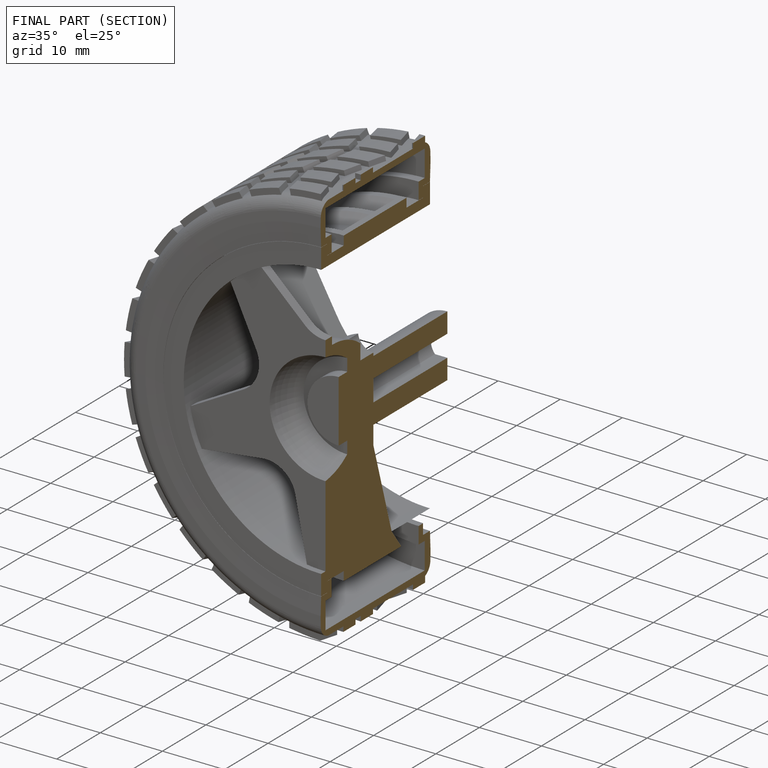
[diagram: finished part — half-section view (interior)]
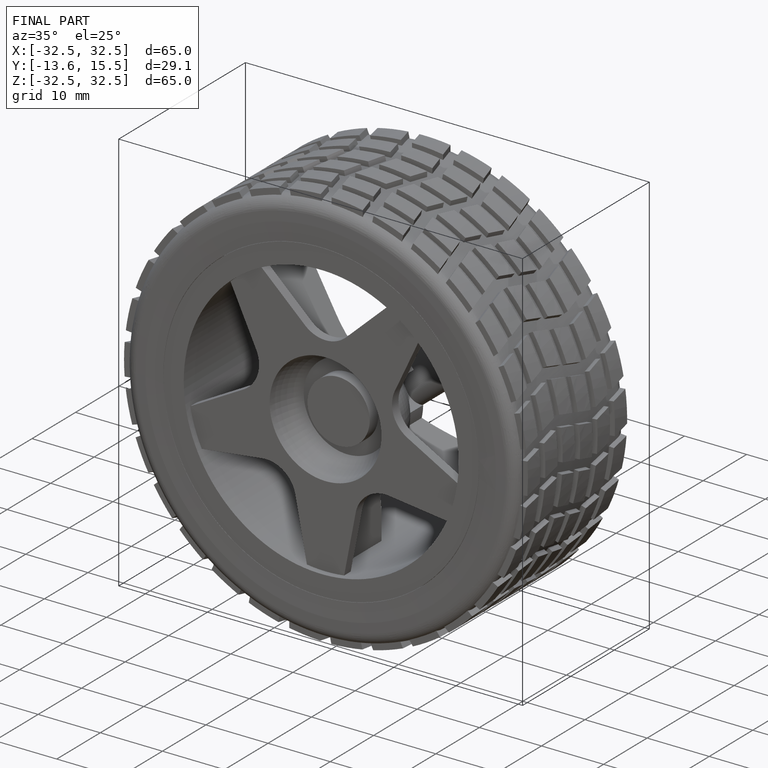
[diagram: finished part — iso view with bounding-box wireframe]
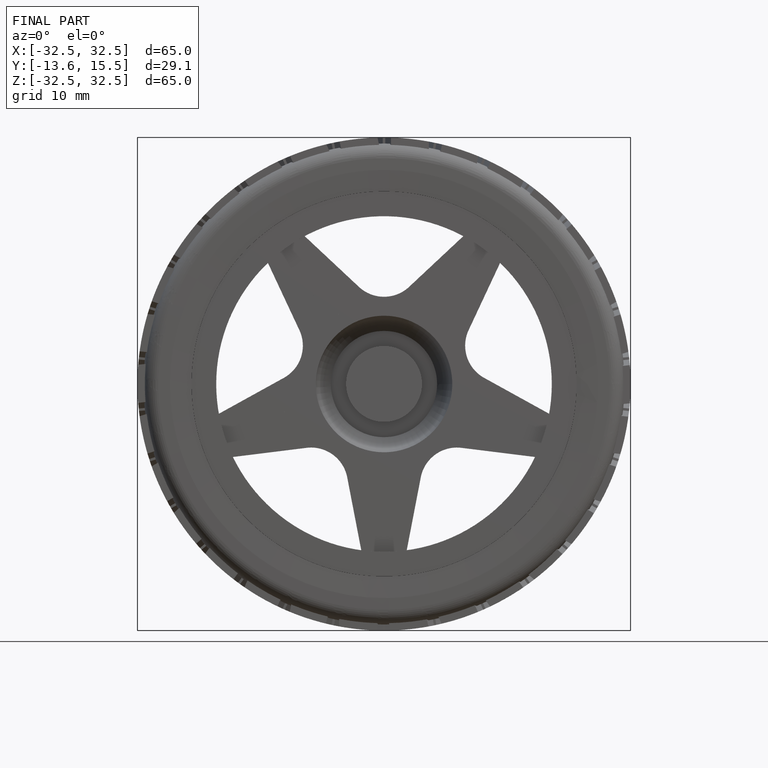
[diagram: finished part — front view with bounding-box wireframe]
